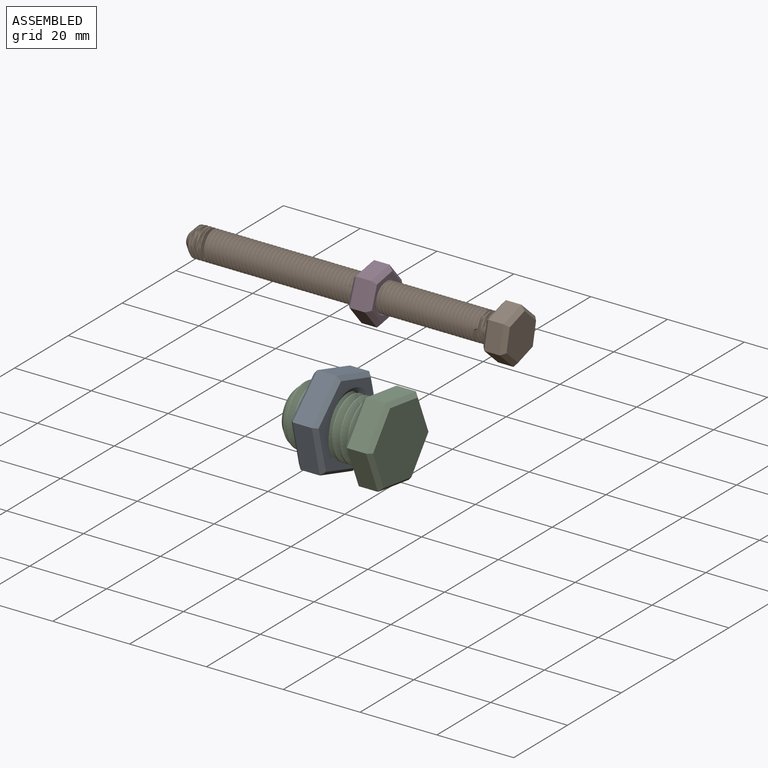
[diagram: assembled view]
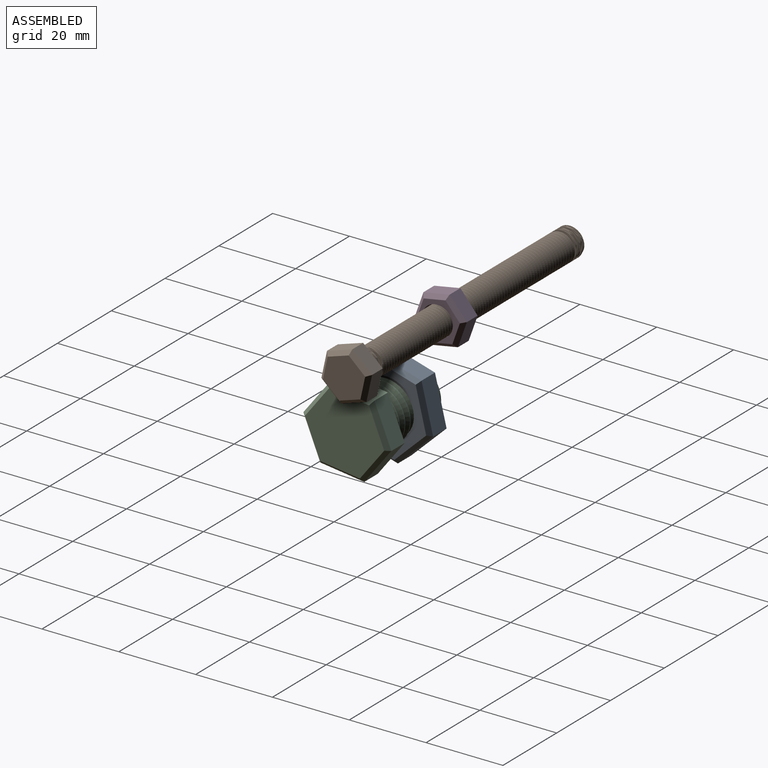
[diagram: assembled view, second angle]
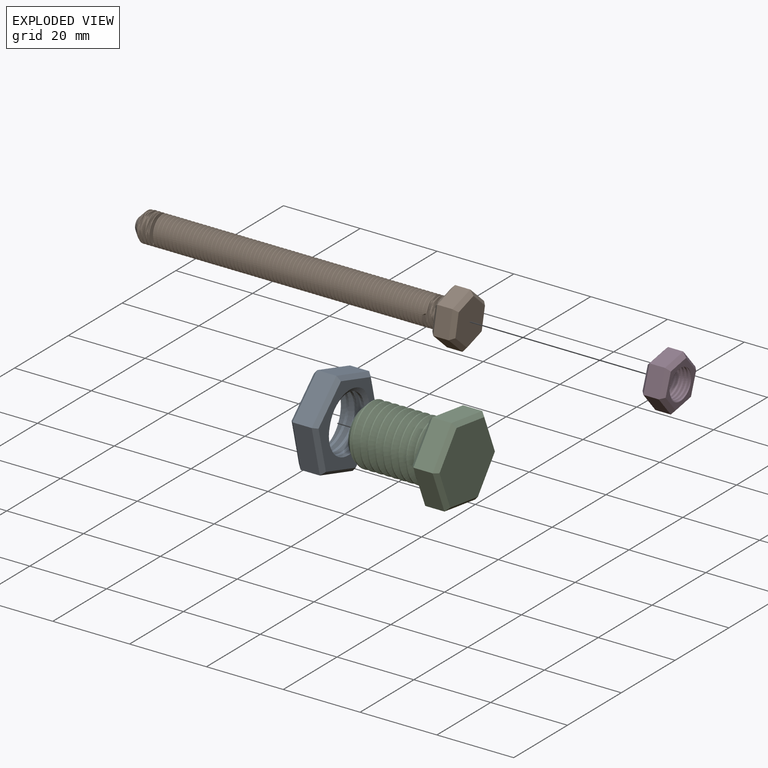
[diagram: exploded view]
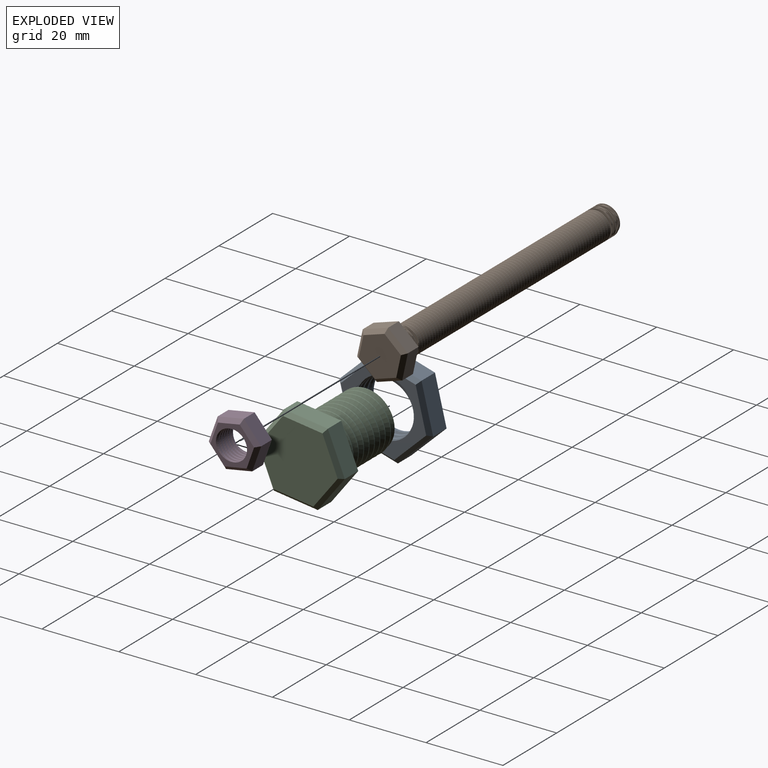
[diagram: exploded view, second angle]
ASSEMBLY  parts=4 mates=3
PART A: 23 faces, bbox 9.3x22.7x26 mm
  f0: cylinder r=7.24mm len=14.48mm, axis (1,0,0), area 111.6mm2, adj f7,f8,f21,f22
  f1: plane 10.98x6.38mm, normal (0,-0.5,0.86), area 63.5mm2, adj f2,f6,f14,f18
  f2: plane 12.7x5mm, normal (0,-1,0), area 63.5mm2, adj f1,f3,f12,f16
  f3: plane 11.02x6.32mm, normal (0,-0.5,-0.87), area 63.5mm2, adj f2,f4,f10,f15
  f4: plane 10.98x6.38mm, normal (0,0.5,-0.86), area 63.5mm2, adj f3,f5,f9,f17
  f5: plane 12.7x5mm, normal (0,1,0), area 63.5mm2, adj f4,f6,f11,f19
  f6: plane 11.02x6.32mm, normal (0,0.5,0.87), area 63.5mm2, adj f1,f5,f13,f20
  f7: plane 23.73x20.67mm, normal (-1,0,0), area 164.4mm2, adj f0,f9,f10,f11,f12,f13,f14,f21
  f8: plane 23.73x20.67mm, normal (1,0,0), area 164.4mm2, adj f0,f15,f16,f17,f18,f19,f20,f21
  f9: plane 10.99x6.96mm, normal (-0.71,0.36,-0.61), area 17.1mm2, adj f4,f7,f10,f11
  f10: plane 11.02x6.9mm, normal (-0.71,-0.35,-0.61), area 17.1mm2, adj f3,f7,f9,f12
  f11: plane 12.7x1.03mm, normal (-0.71,0.71,0), area 17.1mm2, adj f5,f7,f9,f13
  f12: plane 12.7x1.03mm, normal (-0.71,-0.71,0), area 17.1mm2, adj f2,f7,f10,f14
  f13: plane 11.02x6.9mm, normal (-0.71,0.35,0.61), area 17.1mm2, adj f6,f7,f11,f14
  f14: plane 10.99x6.96mm, normal (-0.71,-0.36,0.61), area 17.1mm2, adj f1,f7,f12,f13
  f15: plane 11.02x6.9mm, normal (0.71,-0.35,-0.61), area 17.1mm2, adj f3,f8,f16,f17
  f16: plane 12.7x1.03mm, normal (0.71,-0.71,0), area 17.1mm2, adj f2,f8,f15,f18
  f17: plane 10.99x6.96mm, normal (0.71,0.36,-0.61), area 17.1mm2, adj f4,f8,f15,f19
  f18: plane 10.99x6.96mm, normal (0.71,-0.36,0.61), area 17.1mm2, adj f1,f8,f16,f20
  f19: plane 12.7x1.03mm, normal (0.71,0.71,0), area 17.1mm2, adj f5,f8,f17,f20
  f20: plane 11.02x6.9mm, normal (0.71,0.35,0.61), area 17.1mm2, adj f6,f8,f18,f19
  f21: bspline ~19.31x16.73mm, area 223mm2, adj f0,f7,f8,f22
  f22: bspline ~19.31x16.73mm, area 223mm2, adj f0,f7,f8,f21
PART B: 26 faces, bbox 86.6x12.6x14.4 mm
  f0: cylinder r=3.8mm len=78mm, axis (1,0,0), area -110.8mm2, adj f1,f2,f4,f5,f13
  f1: bspline ~79.44x8.78mm, area 1478.2mm2, adj f0,f2,f4,f5,f13
  f2: bspline ~79.77x8.78mm, area 1476.1mm2, adj f0,f1,f4,f13
  f3: plane 3.6x3.6mm, normal (-1,0,0), area 10.2mm2, adj f4
  f4: cone r=3.8mm half-angle=45deg, axis (1,0,0), area 39.1mm2, adj f0,f1,f2,f3,f5
  f5: cone r=3.8mm half-angle=45deg, axis (1,0,0), area 0.2mm2, adj f0,f1,f4
  f6: plane 5.99x4mm, normal (0,-0.5,0.86), area 27.7mm2, adj f7,f11,f19,f23
  f7: plane 6.93x4mm, normal (0,-1,0), area 27.7mm2, adj f6,f8,f17,f21
  f8: plane 6.01x4mm, normal (0,-0.5,-0.87), area 27.7mm2, adj f7,f9,f15,f20
  f9: plane 5.99x4mm, normal (0,0.5,-0.86), area 27.7mm2, adj f8,f10,f14,f22
  f10: plane 6.93x4mm, normal (0,1,0), area 27.7mm2, adj f9,f11,f16,f24
  f11: plane 6.01x4mm, normal (0,0.5,0.87), area 27.7mm2, adj f6,f10,f18,f25
  f12: plane 11.55x10.02mm, normal (1,0,0), area 86.6mm2, adj f14,f15,f16,f17,f18,f19
  f13: plane 12.11x10.58mm, normal (-1,0,0), area 48.6mm2, adj f0,f1,f2,f20,f21,f22,f23,f24
  f14: plane 5.99x4.06mm, normal (0.71,0.36,-0.61), area 9mm2, adj f9,f12,f15,f16
  f15: plane 6.01x4.02mm, normal (0.71,-0.35,-0.61), area 9mm2, adj f8,f12,f14,f17
  f16: plane 6.93x1.02mm, normal (0.71,0.71,0), area 9mm2, adj f10,f12,f14,f18
  f17: plane 6.93x1.02mm, normal (0.71,-0.71,0), area 9mm2, adj f7,f12,f15,f19
  f18: plane 6.01x4.02mm, normal (0.71,0.35,0.61), area 9mm2, adj f11,f12,f16,f19
  f19: plane 5.99x4.06mm, normal (0.71,-0.36,0.61), area 9mm2, adj f6,f12,f17,f18
  f20: plane 6.01x4.02mm, normal (-0.71,-0.35,-0.61), area 9mm2, adj f8,f13,f21,f22
  f21: plane 6.93x1.02mm, normal (-0.71,-0.71,0), area 9mm2, adj f7,f13,f20,f23
  f22: plane 5.99x4.06mm, normal (-0.71,0.36,-0.61), area 9mm2, adj f9,f13,f20,f24
  f23: plane 5.99x4.06mm, normal (-0.71,-0.36,0.61), area 9mm2, adj f6,f13,f21,f25
  f24: plane 6.93x1.02mm, normal (-0.71,0.71,0), area 9mm2, adj f10,f13,f22,f25
  f25: plane 6.01x4.02mm, normal (-0.71,0.35,0.61), area 9mm2, adj f11,f13,f23,f24
PART C: 26 faces, bbox 27.7x20x23.1 mm
  f0: cylinder r=7.68mm len=18mm, axis (1,0,0), area 139.1mm2, adj f1,f2,f5,f13
  f1: bspline ~20.88x17.74mm, area 713.8mm2, adj f0,f2,f4,f5,f13
  f2: bspline ~21.88x17.74mm, area 715.1mm2, adj f0,f1,f4,f5,f13
  f3: plane 11.36x11.36mm, normal (-1,0,0), area 101.4mm2, adj f4
  f4: cone r=7.68mm half-angle=45deg, axis (1,0,0), area 63.2mm2, adj f1,f2,f3,f5
  f5: cone r=7.68mm half-angle=45deg, axis (1,0,0), area 13.2mm2, adj f0,f1,f2,f4
  f6: plane 9.98x5.81mm, normal (0,-0.5,0.86), area 57.7mm2, adj f7,f11,f19,f23
  f7: plane 11.55x5mm, normal (0,-1,0), area 57.7mm2, adj f6,f8,f17,f21
  f8: plane 10.02x5.74mm, normal (0,-0.5,-0.87), area 57.7mm2, adj f7,f9,f15,f20
  f9: plane 9.98x5.81mm, normal (0,0.5,-0.86), area 57.7mm2, adj f8,f10,f14,f22
  f10: plane 11.55x5mm, normal (0,1,0), area 57.7mm2, adj f9,f11,f16,f24
  f11: plane 10.02x5.74mm, normal (0,0.5,0.87), area 57.7mm2, adj f6,f10,f18,f25
  f12: plane 20.78x18.04mm, normal (1,0,0), area 280.6mm2, adj f14,f15,f16,f17,f18,f19
  f13: plane 20.78x18.04mm, normal (-1,0,0), area 125.2mm2, adj f0,f1,f2,f20,f21,f22,f23,f24
  f14: plane 9.98x6.38mm, normal (0.71,0.36,-0.61), area 15.5mm2, adj f9,f12,f15,f16
  f15: plane 10.02x6.32mm, normal (0.71,-0.35,-0.61), area 15.5mm2, adj f8,f12,f14,f17
  f16: plane 11.55x1.04mm, normal (0.71,0.71,0), area 15.5mm2, adj f10,f12,f14,f18
  f17: plane 11.55x1.04mm, normal (0.71,-0.71,0), area 15.5mm2, adj f7,f12,f15,f19
  f18: plane 10.02x6.32mm, normal (0.71,0.35,0.61), area 15.5mm2, adj f11,f12,f16,f19
  f19: plane 9.98x6.38mm, normal (0.71,-0.36,0.61), area 15.5mm2, adj f6,f12,f17,f18
  f20: plane 10.02x6.32mm, normal (-0.71,-0.35,-0.61), area 15.5mm2, adj f8,f13,f21,f22
  f21: plane 11.55x1.04mm, normal (-0.71,-0.71,0), area 15.5mm2, adj f7,f13,f20,f23
  f22: plane 9.98x6.38mm, normal (-0.71,0.36,-0.61), area 15.5mm2, adj f9,f13,f20,f24
  f23: plane 9.98x6.38mm, normal (-0.71,-0.36,0.61), area 15.5mm2, adj f6,f13,f21,f25
  f24: plane 11.55x1.04mm, normal (-0.71,0.71,0), area 15.5mm2, adj f10,f13,f22,f25
  f25: plane 10.02x6.32mm, normal (-0.71,0.35,0.61), area 15.5mm2, adj f11,f13,f23,f24
PART D: 23 faces, bbox 7.4x12.2x14.1 mm
  f0: cylinder r=3.84mm len=7.68mm, axis (1,0,0), area 67.1mm2, adj f7,f8,f21,f22
  f1: plane 6.01x4mm, normal (0,0.5,0.87), area 27.7mm2, adj f2,f6,f13,f20
  f2: plane 5.99x4mm, normal (0,-0.5,0.86), area 27.7mm2, adj f1,f3,f14,f18
  f3: plane 6.93x4mm, normal (0,-1,0), area 27.7mm2, adj f2,f4,f12,f16
  f4: plane 6.01x4mm, normal (0,-0.5,-0.87), area 27.7mm2, adj f3,f5,f10,f15
  f5: plane 5.99x4mm, normal (0,0.5,-0.86), area 27.7mm2, adj f4,f6,f9,f17
  f6: plane 6.93x4mm, normal (0,1,0), area 27.7mm2, adj f1,f5,f11,f19
  f7: plane 11.77x10.24mm, normal (-1,0,0), area 37.1mm2, adj f0,f9,f10,f11,f12,f13,f14,f21
  f8: plane 11.77x10.24mm, normal (1,0,0), area 37.1mm2, adj f0,f15,f16,f17,f18,f19,f20,f21
  f9: plane 5.99x4.06mm, normal (-0.71,0.36,-0.61), area 9mm2, adj f5,f7,f10,f11
  f10: plane 6.01x4.02mm, normal (-0.71,-0.35,-0.61), area 9mm2, adj f4,f7,f9,f12
  f11: plane 6.93x1.02mm, normal (-0.71,0.71,0), area 9mm2, adj f6,f7,f9,f13
  f12: plane 6.93x1.02mm, normal (-0.71,-0.71,0), area 9mm2, adj f3,f7,f10,f14
  f13: plane 6.01x4.02mm, normal (-0.71,0.35,0.61), area 9mm2, adj f1,f7,f11,f14
  f14: plane 5.99x4.06mm, normal (-0.71,-0.36,0.61), area 9mm2, adj f2,f7,f12,f13
  f15: plane 6.01x4.02mm, normal (0.71,-0.35,-0.61), area 9mm2, adj f4,f8,f16,f17
  f16: plane 6.93x1.02mm, normal (0.71,-0.71,0), area 9mm2, adj f3,f8,f15,f18
  f17: plane 5.99x4.06mm, normal (0.71,0.36,-0.61), area 9mm2, adj f5,f8,f15,f19
  f18: plane 5.99x4.06mm, normal (0.71,-0.36,0.61), area 9mm2, adj f2,f8,f16,f20
  f19: plane 6.93x1.02mm, normal (0.71,0.71,0), area 9mm2, adj f6,f8,f17,f20
  f20: plane 6.01x4.02mm, normal (0.71,0.35,0.61), area 9mm2, adj f1,f8,f18,f19
  f21: bspline ~9.95x8.62mm, area 82.8mm2, adj f0,f7,f8,f22
  f22: bspline ~9.95x8.62mm, area 82.8mm2, adj f0,f7,f8,f21
PLACE A rot(axis=(0,0.6,-0.8),180deg) t=(-55.27,-6.86,23.48)mm fixed
PLACE B rot(axis=(-1,0,0),132.4deg) t=(-16.21,7.38,48.02)mm
PLACE C rot(axis=(1,0,0),82.2deg) t=(-37.84,-7.25,23.06)mm
PLACE D rot(axis=(1,0,0),100.2deg) t=(-48.16,7.38,48.02)mm fixed
MATE cylindrical B.f0 <-> D.f0  axis (-1,0,0) through (-99.21,7.38,48.02)mm
MATE cylindrical C.f0 <-> A.f7  axis (-1,0,0) through (-61.34,-7.25,23.06)mm
MATE cylindrical C.f0 <-> A.f7  axis (-1,0,0) through (-61.34,-7.25,23.06)mm
